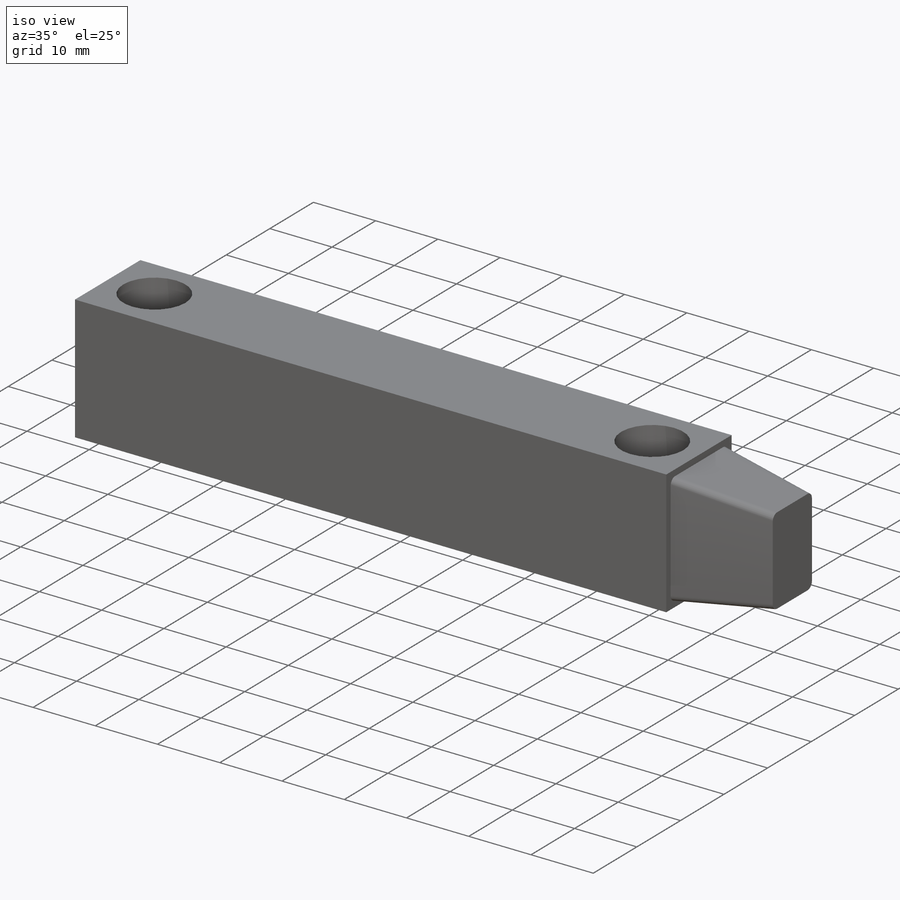
[diagram: iso view]
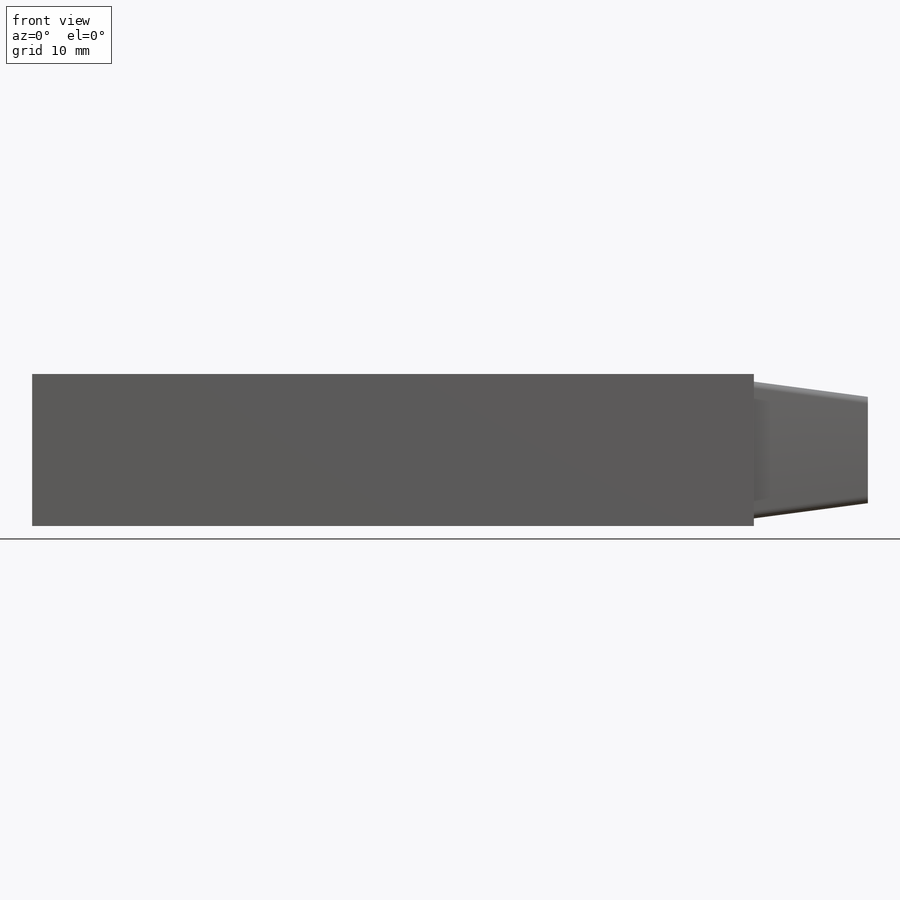
[diagram: front view]
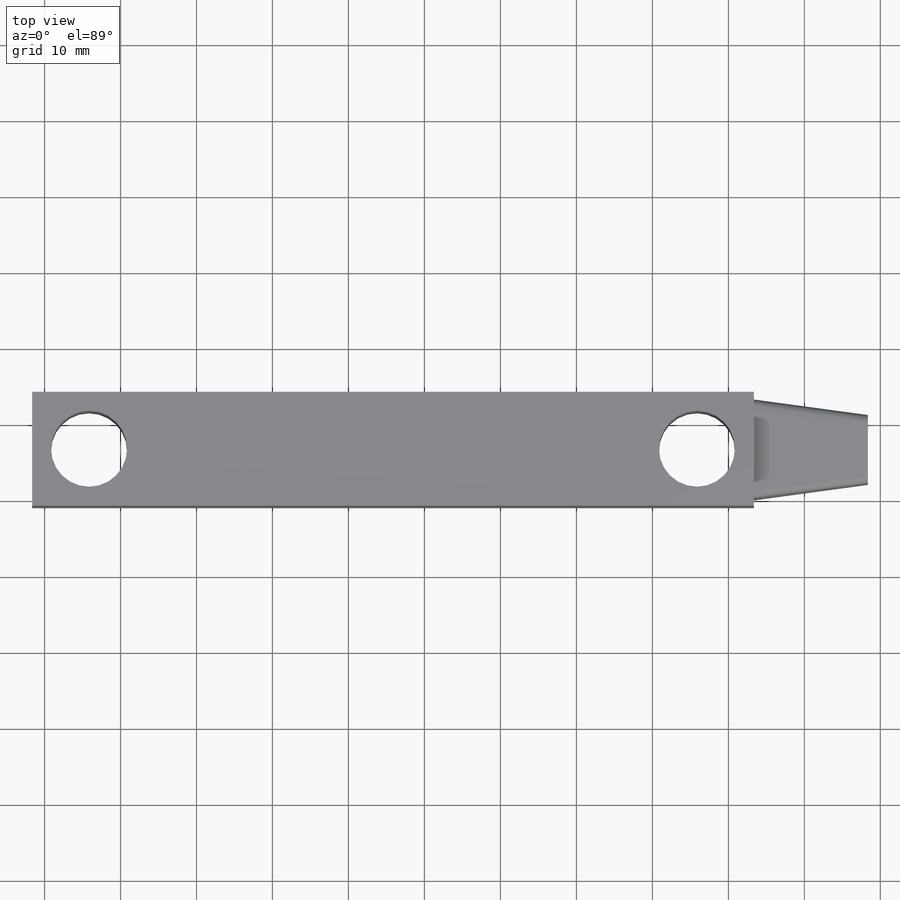
[diagram: top view]
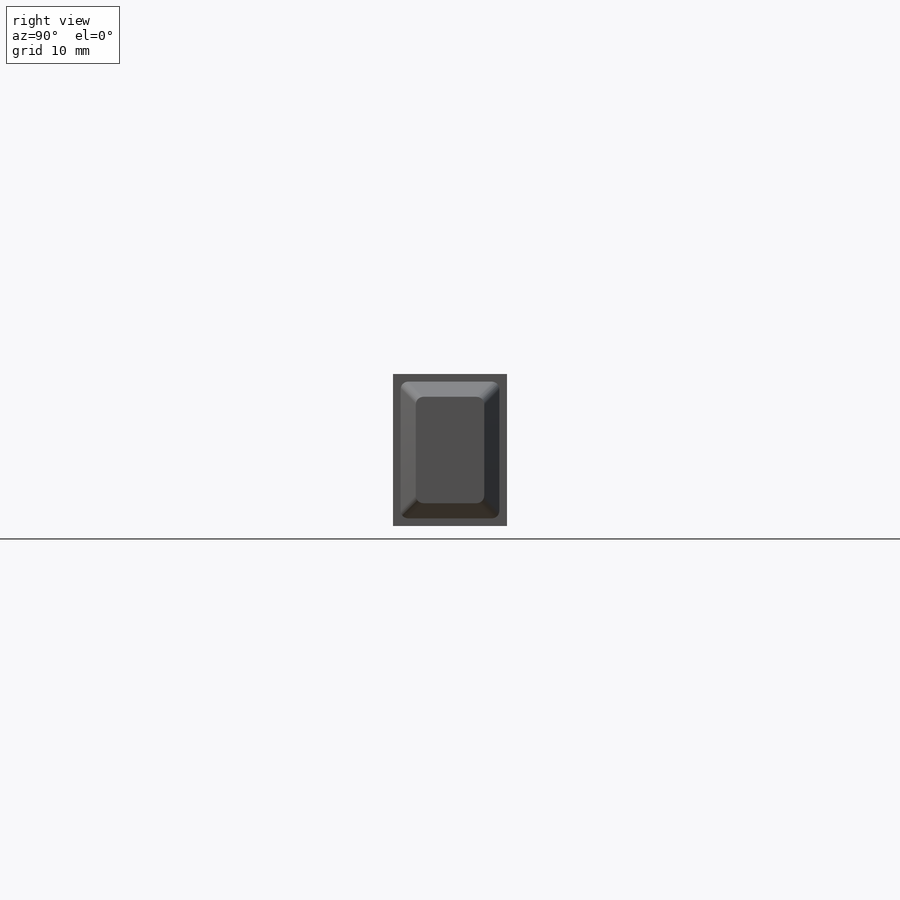
[diagram: right view]
SOLIDWORKS PART (.sldprt)
format: sldprt  version: not decoded by parser v0  size: 221,696 bytes
history: native  units: mm
features: sketch x7, plane x4, material x1, extrude x1, hole x1 (+12 scaffold rows collapsed)
feature tree (26):
  scaffold x12  (default folders/planes/origin — collapsed)
  material  "Material <not specified>"
  sketch  "Sketch1"  dims[D1=15.0mm]
  extrude  "Boss-Extrude1"  Depth=20mm
  plane  "Plane1"  Offset=0mm
  sketch  "Sketch2"  dims[D5=1.0mm D1=1.0mm D2=1.0mm D3=1.0mm D4=1.0mm]
  plane  "Plane2"  Offset=15mm
  sketch  "Sketch5"  dims[c1.D5=1.0mm c1.D1=3.0mm c1.D2=3.0mm c1.D3=3.0mm c1.D4=3.0mm c2.D5=2.0mm]
  plane  "Plane3"  Offset=0mm
  sketch  "Sketch7"  dims[D1=~3.655419mm]
  plane  "Plane4"  Offset=0mm
  sketch  "Sketch8"  dims[D1=7.5mm D2=7.5mm D3=80.0mm D4=7.5mm]
  hole  "M10x1.0 Tapped Hole1"  Diameter=9mm Depth=23mm
  sketch  "3DSketch1"
  sketch  "Sketch9"  dims[hole-wizard template sketch: 34 standard entries collapsed; hole parameters above]
decode coverage: 8 of 9 modeling features carry decoded parameters
note: ~ marks probable driven/reference dimensions
note: suppression state not decoded; provenance and decode notes live in map.json
